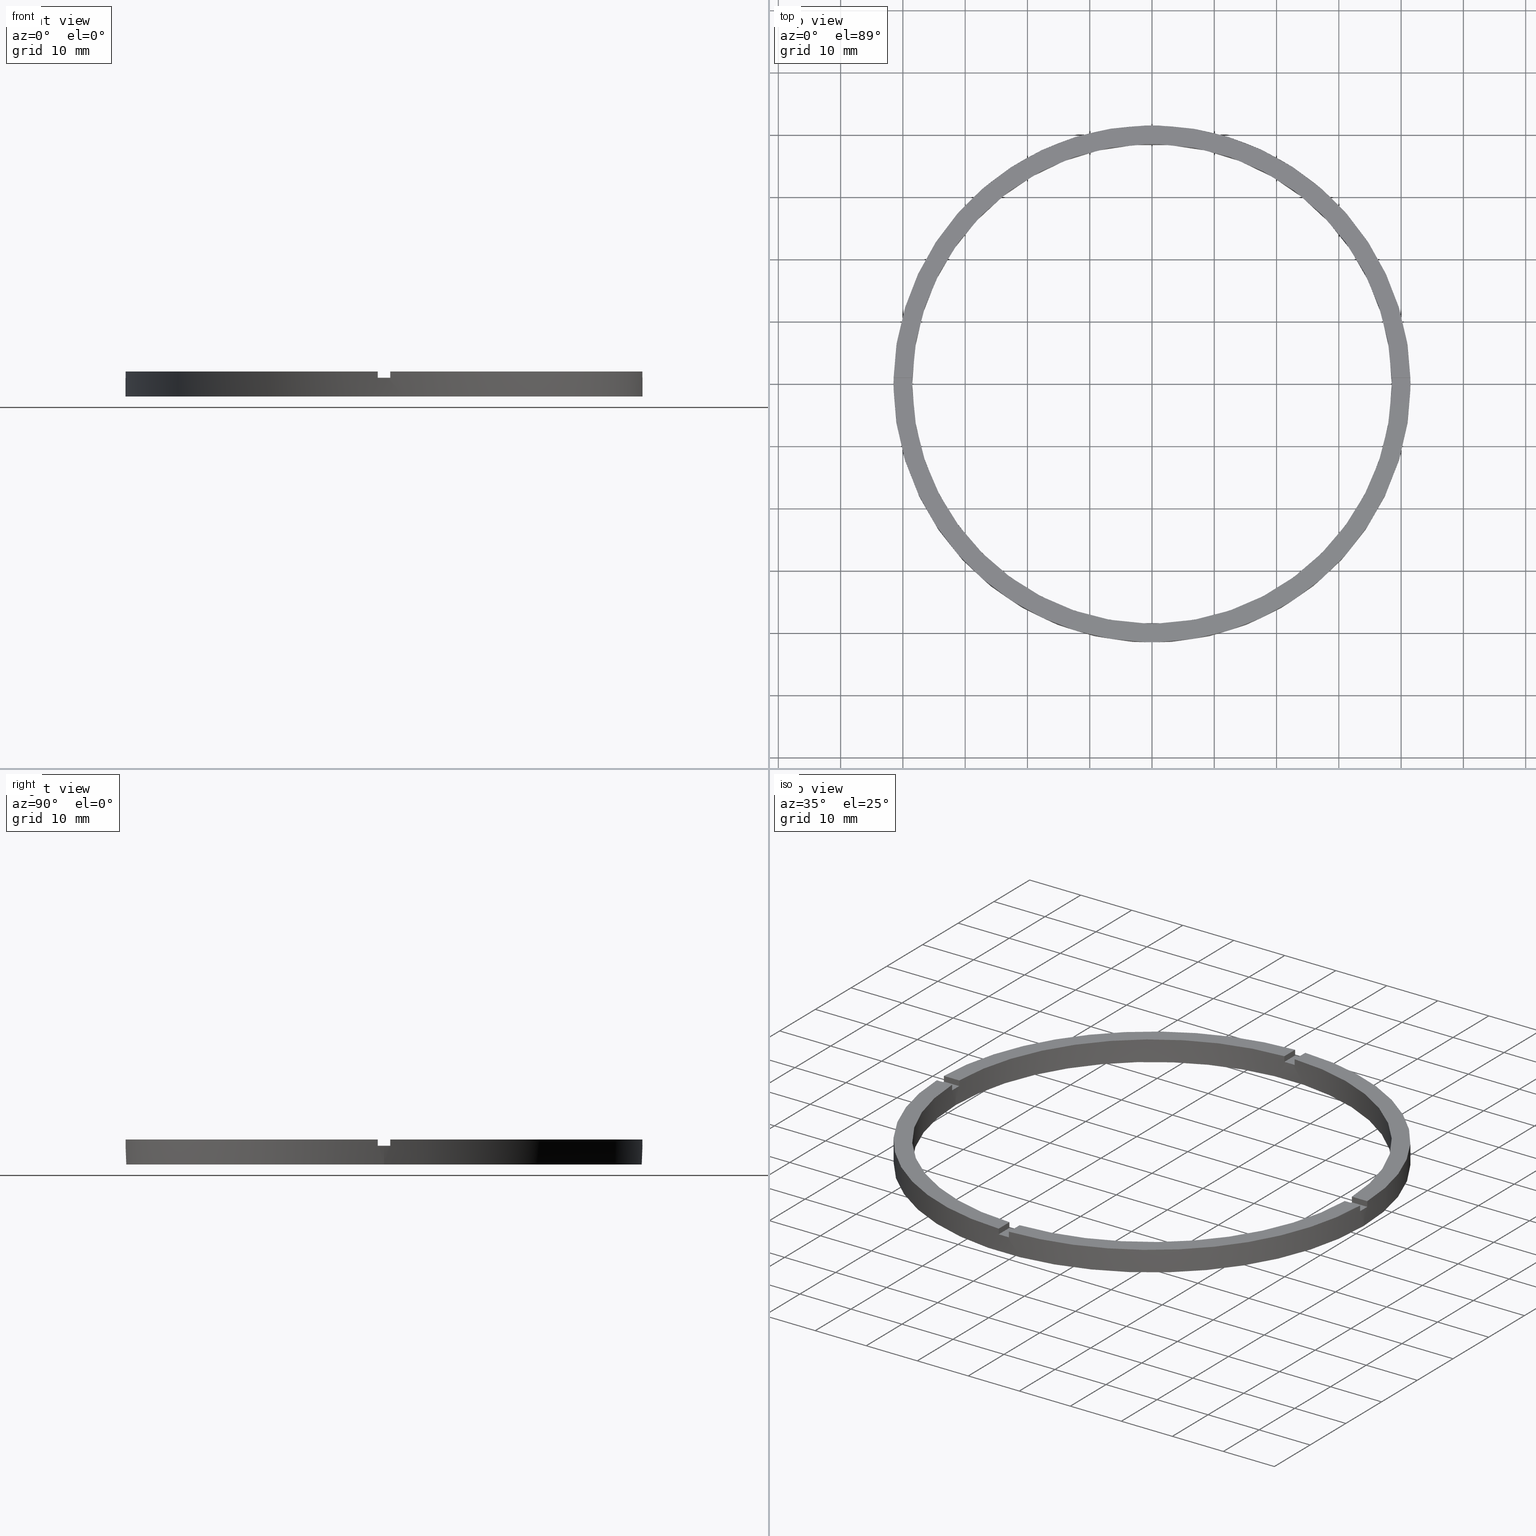
[diagram: canonical four-view strip — front | top / right | iso, engineering-drawing reading convention]
A machine part, canonical four-view strip (front | top / right | iso — engineering-drawing reading convention). The complete STEP part file that produces these views, byte-faithful:
ISO-10303-21;
HEADER;
FILE_DESCRIPTION (( 'STEP AP203' ),
    '1' );
FILE_NAME ('514170.step',
    '2024-12-26T02:44:21',
    ( 'MSI' ),
    ( '' ),
    'SwSTEP 2.0',
    'SolidWorks 2020',
    '' );
FILE_SCHEMA (( 'CONFIG_CONTROL_DESIGN' ));
ENDSEC;

DATA;
#1 = DIRECTION ( 'NONE',  ( 1.000000000000000000, 0.000000000000000000, 0.000000000000000000 ) ) ;
#2 = CARTESIAN_POINT ( 'NONE',  ( 0.9999999999998397948, -31.50000000000018119, 3.000000000000000000 ) ) ;
#3 = CARTESIAN_POINT ( 'NONE',  ( -41.48795005781799716, -1.000000000000028866, 4.000000000000000000 ) ) ;
#4 = CARTESIAN_POINT ( 'NONE',  ( 0.9999999999998406830, -38.48701079585163853, 4.000000000000000000 ) ) ;
#5 = DIRECTION ( 'NONE',  ( 1.000000000000000000, 0.000000000000000000, 0.000000000000000000 ) ) ;
#6 = CARTESIAN_POINT ( 'NONE',  ( 0.000000000000000000, 0.000000000000000000, 4.000000000000000000 ) ) ;
#7 = EDGE_CURVE ( 'NONE', #75, #222, #469, .T. ) ;
#8 = AXIS2_PLACEMENT_3D ( 'NONE', #368, #763, #560 ) ;
#9 = CARTESIAN_POINT ( 'NONE',  ( 38.48701079585163143, -1.000000000000156763, 4.000000000000000000 ) ) ;
#10 = DIRECTION ( 'NONE',  ( -1.000000000000000000, -1.301042606982605074E-16, 0.000000000000000000 ) ) ;
#11 = PLANE ( 'NONE',  #210 ) ;
#12 = EDGE_CURVE ( 'NONE', #303, #117, #732, .T. ) ;
#13 = CARTESIAN_POINT ( 'NONE',  ( 0.000000000000000000, 0.000000000000000000, 0.000000000000000000 ) ) ;
#14 = CARTESIAN_POINT ( 'NONE',  ( 41.48795005781800427, 0.9999999999998432365, 3.000000000000000000 ) ) ;
#15 = DESIGN_CONTEXT ( 'detailed design', #437, 'design' ) ;
#16 = EDGE_CURVE ( 'NONE', #352, #464, #205, .T. ) ;
#17 = CARTESIAN_POINT ( 'NONE',  ( 41.50000000000000000, 5.082284216461515748E-15, 0.000000000000000000 ) ) ;
#18 = AXIS2_PLACEMENT_3D ( 'NONE', #681, #366, #49 ) ;
#19 = CC_DESIGN_SECURITY_CLASSIFICATION ( #711, ( #764 ) ) ;
#20 = AXIS2_PLACEMENT_3D ( 'NONE', #755, #375, #747 ) ;
#21 = DIRECTION ( 'NONE',  ( 0.000000000000000000, 0.000000000000000000, 1.000000000000000000 ) ) ;
#22 = CARTESIAN_POINT ( 'NONE',  ( 0.000000000000000000, 0.000000000000000000, 3.000000000000000000 ) ) ;
#23 = ORIENTED_EDGE ( 'NONE', *, *, #257, .T. ) ;
#24 = ORIENTED_EDGE ( 'NONE', *, *, #435, .T. ) ;
#25 = CARTESIAN_POINT ( 'NONE',  ( -41.48795005781799716, -1.000000000000028866, 4.000000000000000000 ) ) ;
#26 = CARTESIAN_POINT ( 'NONE',  ( 0.000000000000000000, 0.000000000000000000, 4.000000000000000000 ) ) ;
#27 = ORIENTED_EDGE ( 'NONE', *, *, #33, .T. ) ;
#28 = AXIS2_PLACEMENT_3D ( 'NONE', #305, #748, #32 ) ;
#29 = APPROVAL_ROLE ( '' ) ;
#30 = DIRECTION ( 'NONE',  ( 1.000000000000000000, 0.000000000000000000, -0.000000000000000000 ) ) ;
#31 = DIRECTION ( 'NONE',  ( 1.000000000000000000, 0.000000000000000000, 0.000000000000000000 ) ) ;
#32 = DIRECTION ( 'NONE',  ( 1.000000000000000000, 0.000000000000000000, 0.000000000000000000 ) ) ;
#33 = EDGE_CURVE ( 'NONE', #100, #377, #198, .T. ) ;
#34 = DIRECTION ( 'NONE',  ( 1.000000000000000000, 0.000000000000000000, -0.000000000000000000 ) ) ;
#35 = PLANE ( 'NONE',  #343 ) ;
#36 = DIRECTION ( 'NONE',  ( -0.000000000000000000, -0.000000000000000000, -1.000000000000000000 ) ) ;
#37 = CARTESIAN_POINT ( 'NONE',  ( 0.9999999999999742428, 41.48795005781799716, 3.000000000000000000 ) ) ;
#38 = LINE ( 'NONE', #783, #56 ) ;
#39 = CARTESIAN_POINT ( 'NONE',  ( 31.49999999999999289, -1.000000000000157430, 4.000000000000000000 ) ) ;
#40 = CARTESIAN_POINT ( 'NONE',  ( 0.000000000000000000, 0.000000000000000000, 3.000000000000000000 ) ) ;
#41 = CARTESIAN_POINT ( 'NONE',  ( 0.9999999999999742428, 38.48701079585163143, 3.000000000000000000 ) ) ;
#42 = CARTESIAN_POINT ( 'NONE',  ( 0.9999999999998406830, -38.48701079585163853, 4.000000000000000000 ) ) ;
#43 = FACE_OUTER_BOUND ( 'NONE', #337, .T. ) ;
#44 = EDGE_CURVE ( 'NONE', #637, #736, #225, .T. ) ;
#45 = VECTOR ( 'NONE', #125, 1000.000000000000000 ) ;
#46 = VECTOR ( 'NONE', #248, 1000.000000000000000 ) ;
#47 = CARTESIAN_POINT ( 'NONE',  ( 38.50000000000000000, 4.714890176717309515E-15, 3.000000000000000000 ) ) ;
#48 = AXIS2_PLACEMENT_3D ( 'NONE', #187, #256, #359 ) ;
#49 = DIRECTION ( 'NONE',  ( 1.000000000000000000, 0.000000000000000000, 0.000000000000000000 ) ) ;
#50 = LINE ( 'NONE', #277, #572 ) ;
#51 = PLANE ( 'NONE',  #770 ) ;
#52 = VECTOR ( 'NONE', #738, 1000.000000000000000 ) ;
#53 = VECTOR ( 'NONE', #656, 1000.000000000000000 ) ;
#54 = FACE_OUTER_BOUND ( 'NONE', #644, .T. ) ;
#55 = ADVANCED_FACE ( 'NONE', ( #189 ), #250, .T. ) ;
#56 = VECTOR ( 'NONE', #191, 1000.000000000000000 ) ;
#57 = DIRECTION ( 'NONE',  ( 1.000000000000000000, 0.000000000000000000, -0.000000000000000000 ) ) ;
#58 = FACE_OUTER_BOUND ( 'NONE', #618, .T. ) ;
#59 = FACE_OUTER_BOUND ( 'NONE', #90, .T. ) ;
#60 = AXIS2_PLACEMENT_3D ( 'NONE', #771, #284, #421 ) ;
#61 = CYLINDRICAL_SURFACE ( 'NONE', #628, 38.50000000000000000 ) ;
#62 =( GEOMETRIC_REPRESENTATION_CONTEXT ( 3 ) GLOBAL_UNCERTAINTY_ASSIGNED_CONTEXT ( ( #621 ) ) GLOBAL_UNIT_ASSIGNED_CONTEXT ( ( #262, #109, #188 ) ) REPRESENTATION_CONTEXT ( 'NONE', 'WORKASPACE' ) );
#63 = PLANE ( 'NONE',  #521 ) ;
#64 = VECTOR ( 'NONE', #565, 1000.000000000000000 ) ;
#65 = CARTESIAN_POINT ( 'NONE',  ( 31.49999999999999289, -1.000000000000157430, 3.000000000000000000 ) ) ;
#66 = CIRCLE ( 'NONE', #534, 38.50000000000000000 ) ;
#67 = CIRCLE ( 'NONE', #728, 41.50000000000000000 ) ;
#68 = FACE_OUTER_BOUND ( 'NONE', #614, .T. ) ;
#69 = EDGE_LOOP ( 'NONE', ( #428, #361, #370, #701, #675, #682, #391, #673, #163, #395, #127, #403 ) ) ;
#70 = CARTESIAN_POINT ( 'NONE',  ( 0.9999999999998411271, -41.48795005781800427, 3.000000000000000000 ) ) ;
#71 = LINE ( 'NONE', #541, #759 ) ;
#72 = CLOSED_SHELL ( 'NONE', ( #586, #548, #309, #508, #192, #442, #260, #116, #536, #351, #603, #723, #271, #291, #552, #686, #448, #515, #653, #149, #55 ) ) ;
#73 = DIRECTION ( 'NONE',  ( 1.000000000000000000, 0.000000000000000000, 0.000000000000000000 ) ) ;
#74 = CIRCLE ( 'NONE', #779, 38.50000000000000000 ) ;
#75 = VERTEX_POINT ( 'NONE', #3 ) ;
#76 = VECTOR ( 'NONE', #184, 1000.000000000000000 ) ;
#77 = CARTESIAN_POINT ( 'NONE',  ( 0.000000000000000000, 0.000000000000000000, 3.000000000000000000 ) ) ;
#78 = FACE_OUTER_BOUND ( 'NONE', #86, .T. ) ;
#79 = CARTESIAN_POINT ( 'NONE',  ( -31.50000000000018829, 0.9999999999999731326, 3.000000000000000000 ) ) ;
#80 = FACE_OUTER_BOUND ( 'NONE', #460, .T. ) ;
#81 = CARTESIAN_POINT ( 'NONE',  ( 0.000000000000000000, 0.000000000000000000, 3.000000000000000000 ) ) ;
#82 = VECTOR ( 'NONE', #639, 1000.000000000000000 ) ;
#83 = LINE ( 'NONE', #87, #345 ) ;
#84 = EDGE_CURVE ( 'NONE', #135, #464, #215, .T. ) ;
#85 = EDGE_CURVE ( 'NONE', #612, #223, #194, .T. ) ;
#86 = EDGE_LOOP ( 'NONE', ( #740, #385, #660, #708 ) ) ;
#87 = CARTESIAN_POINT ( 'NONE',  ( 0.9999999999999742428, 31.50000000000000000, 3.000000000000000000 ) ) ;
#88 = DIRECTION ( 'NONE',  ( 0.000000000000000000, 0.000000000000000000, 1.000000000000000000 ) ) ;
#89 = DIRECTION ( 'NONE',  ( 0.000000000000000000, 0.000000000000000000, 1.000000000000000000 ) ) ;
#90 = EDGE_LOOP ( 'NONE', ( #24, #393, #150, #130, #432, #563, #386, #388, #23, #426, #27, #131 ) ) ;
#91 = EDGE_LOOP ( 'NONE', ( #154, #422, #113, #367 ) ) ;
#92 = DIRECTION ( 'NONE',  ( 1.000000000000000000, 0.000000000000000000, 0.000000000000000000 ) ) ;
#93 = DATE_TIME_ROLE ( 'classification_date' ) ;
#94 = CARTESIAN_POINT ( 'NONE',  ( -1.000000000000159428, -38.48701079585163143, 4.000000000000000000 ) ) ;
#95 = VERTEX_POINT ( 'NONE', #537 ) ;
#96 = CIRCLE ( 'NONE', #60, 38.50000000000000000 ) ;
#97 = PLANE ( 'NONE',  #306 ) ;
#98 = CC_DESIGN_DATE_AND_TIME_ASSIGNMENT ( #489, #93, ( #711 ) ) ;
#99 = VERTEX_POINT ( 'NONE', #733 ) ;
#100 = VERTEX_POINT ( 'NONE', #42 ) ;
#101 = DIRECTION ( 'NONE',  ( 1.000000000000000000, 0.000000000000000000, 0.000000000000000000 ) ) ;
#102 = DIRECTION ( 'NONE',  ( 1.000000000000000000, 1.951563910473907735E-16, -0.000000000000000000 ) ) ;
#103 = DIRECTION ( 'NONE',  ( -1.951563910473907735E-16, 1.000000000000000000, 0.000000000000000000 ) ) ;
#104 = VERTEX_POINT ( 'NONE', #657 ) ;
#105 = ORIENTED_EDGE ( 'NONE', *, *, #122, .T. ) ;
#106 = ORIENTED_EDGE ( 'NONE', *, *, #257, .F. ) ;
#107 = ORIENTED_EDGE ( 'NONE', *, *, #662, .F. ) ;
#108 = DIRECTION ( 'NONE',  ( -0.000000000000000000, -0.000000000000000000, -1.000000000000000000 ) ) ;
#109 =( NAMED_UNIT ( * ) PLANE_ANGLE_UNIT ( ) SI_UNIT ( $, .RADIAN. ) );
#110 = EDGE_CURVE ( 'NONE', #95, #387, #211, .T. ) ;
#111 = VERTEX_POINT ( 'NONE', #722 ) ;
#112 = CARTESIAN_POINT ( 'NONE',  ( -1.000000000000160316, -31.50000000000018119, 4.000000000000000000 ) ) ;
#113 = ORIENTED_EDGE ( 'NONE', *, *, #179, .T. ) ;
#114 = AXIS2_PLACEMENT_3D ( 'NONE', #22, #265, #365 ) ;
#115 = ORIENTED_EDGE ( 'NONE', *, *, #726, .T. ) ;
#116 = ADVANCED_FACE ( 'NONE', ( #463 ), #208, .T. ) ;
#117 = VERTEX_POINT ( 'NONE', #647 ) ;
#118 = ORIENTED_EDGE ( 'NONE', *, *, #459, .T. ) ;
#119 = ORIENTED_EDGE ( 'NONE', *, *, #301, .F. ) ;
#120 = DIRECTION ( 'NONE',  ( 0.000000000000000000, 0.000000000000000000, 1.000000000000000000 ) ) ;
#121 = CARTESIAN_POINT ( 'NONE',  ( -31.50000000000018829, -1.000000000000026867, 3.000000000000000000 ) ) ;
#122 = EDGE_CURVE ( 'NONE', #223, #612, #472, .T. ) ;
#123 = ORIENTED_EDGE ( 'NONE', *, *, #321, .T. ) ;
#124 = ORIENTED_EDGE ( 'NONE', *, *, #773, .F. ) ;
#125 = DIRECTION ( 'NONE',  ( 1.000000000000000000, 6.505213034913025371E-17, 0.000000000000000000 ) ) ;
#126 = DIRECTION ( 'NONE',  ( -1.000000000000000000, 0.000000000000000000, 0.000000000000000000 ) ) ;
#127 = ORIENTED_EDGE ( 'NONE', *, *, #741, .T. ) ;
#128 = EDGE_CURVE ( 'NONE', #425, #357, #735, .T. ) ;
#129 = DIRECTION ( 'NONE',  ( 1.000000000000000000, 6.505213034913025371E-17, 0.000000000000000000 ) ) ;
#130 = ORIENTED_EDGE ( 'NONE', *, *, #741, .F. ) ;
#131 = ORIENTED_EDGE ( 'NONE', *, *, #726, .F. ) ;
#132 = MANIFOLD_SOLID_BREP ( '�г�-����1', #72 ) ;
#133 = ORIENTED_EDGE ( 'NONE', *, *, #451, .T. ) ;
#134 = CARTESIAN_POINT ( 'NONE',  ( -1.000000000000025757, 41.48795005781799716, 4.000000000000000000 ) ) ;
#135 = VERTEX_POINT ( 'NONE', #37 ) ;
#136 = ORIENTED_EDGE ( 'NONE', *, *, #369, .F. ) ;
#138 = EDGE_CURVE ( 'NONE', #461, #117, #702, .T. ) ;
#137 = ORIENTED_EDGE ( 'NONE', *, *, #12, .T. ) ;
#139 = EDGE_CURVE ( 'NONE', #222, #710, #212, .T. ) ;
#140 = VERTEX_POINT ( 'NONE', #542 ) ;
#141 = ORIENTED_EDGE ( 'NONE', *, *, #424, .T. ) ;
#142 = ORIENTED_EDGE ( 'NONE', *, *, #229, .T. ) ;
#143 = DIRECTION ( 'NONE',  ( 1.000000000000000000, 1.951563910473907735E-16, 0.000000000000000000 ) ) ;
#144 = AXIS2_PLACEMENT_3D ( 'NONE', #642, #224, #523 ) ;
#145 = VERTEX_POINT ( 'NONE', #285 ) ;
#146 = EDGE_LOOP ( 'NONE', ( #398, #626 ) ) ;
#147 = CARTESIAN_POINT ( 'NONE',  ( 0.9999999999998411271, -41.48795005781800427, 4.000000000000000000 ) ) ;
#148 = ORIENTED_EDGE ( 'NONE', *, *, #699, .T. ) ;
#149 = ADVANCED_FACE ( 'NONE', ( #206 ), #267, .F. ) ;
#150 = ORIENTED_EDGE ( 'NONE', *, *, #459, .F. ) ;
#151 = ORIENTED_EDGE ( 'NONE', *, *, #700, .T. ) ;
#152 = EDGE_LOOP ( 'NONE', ( #646, #666, #405, #397 ) ) ;
#153 = CARTESIAN_POINT ( 'NONE',  ( 31.49999999999999289, 0.9999999999998425704, 3.000000000000000000 ) ) ;
#154 = ORIENTED_EDGE ( 'NONE', *, *, #665, .F. ) ;
#155 = DIRECTION ( 'NONE',  ( 0.000000000000000000, 0.000000000000000000, 1.000000000000000000 ) ) ;
#156 = ORIENTED_EDGE ( 'NONE', *, *, #310, .T. ) ;
#157 = ORIENTED_EDGE ( 'NONE', *, *, #128, .T. ) ;
#158 = EDGE_CURVE ( 'NONE', #111, #104, #721, .T. ) ;
#159 = ORIENTED_EDGE ( 'NONE', *, *, #435, .F. ) ;
#160 = ORIENTED_EDGE ( 'NONE', *, *, #275, .F. ) ;
#161 = CC_DESIGN_APPROVAL ( #478, ( #764 ) ) ;
#162 = ORIENTED_EDGE ( 'NONE', *, *, #466, .F. ) ;
#163 = ORIENTED_EDGE ( 'NONE', *, *, #636, .F. ) ;
#164 = AXIS2_PLACEMENT_3D ( 'NONE', #516, #21, #92 ) ;
#165 = ORIENTED_EDGE ( 'NONE', *, *, #776, .F. ) ;
#166 = ORIENTED_EDGE ( 'NONE', *, *, #440, .T. ) ;
#167 = ORIENTED_EDGE ( 'NONE', *, *, #7, .T. ) ;
#168 = ORIENTED_EDGE ( 'NONE', *, *, #678, .T. ) ;
#169 = ORIENTED_EDGE ( 'NONE', *, *, #532, .F. ) ;
#170 = ORIENTED_EDGE ( 'NONE', *, *, #229, .F. ) ;
#171 = ORIENTED_EDGE ( 'NONE', *, *, #696, .T. ) ;
#172 = ORIENTED_EDGE ( 'NONE', *, *, #110, .T. ) ;
#173 = ORIENTED_EDGE ( 'NONE', *, *, #651, .F. ) ;
#174 = AXIS2_PLACEMENT_3D ( 'NONE', #264, #307, #101 ) ;
#175 = VERTEX_POINT ( 'NONE', #384 ) ;
#176 = ORIENTED_EDGE ( 'NONE', *, *, #209, .F. ) ;
#177 = CARTESIAN_POINT ( 'NONE',  ( -1.000000000000025757, 38.48701079585163143, 4.000000000000000000 ) ) ;
#178 = CARTESIAN_POINT ( 'NONE',  ( 41.48795005781799006, -1.000000000000156763, 4.000000000000000000 ) ) ;
#179 = EDGE_CURVE ( 'NONE', #202, #104, #465, .T. ) ;
#180 = SECURITY_CLASSIFICATION_LEVEL ( 'unclassified' ) ;
#181 = PRODUCT_DEFINITION_SHAPE ( 'NONE', 'NONE',  #290 ) ;
#182 = DIRECTION ( 'NONE',  ( 0.000000000000000000, 0.000000000000000000, 1.000000000000000000 ) ) ;
#183 = CARTESIAN_POINT ( 'NONE',  ( 0.9999999999999742428, 41.48795005781799716, 4.000000000000000000 ) ) ;
#184 = DIRECTION ( 'NONE',  ( 0.000000000000000000, 0.000000000000000000, 1.000000000000000000 ) ) ;
#185 = AXIS2_PLACEMENT_3D ( 'NONE', #512, #266, #5 ) ;
#186 = APPLICATION_PROTOCOL_DEFINITION ( 'international standard', 'config_control_design', 1994, #288 ) ;
#187 = CARTESIAN_POINT ( 'NONE',  ( 0.000000000000000000, 0.000000000000000000, 4.000000000000000000 ) ) ;
#188 =( NAMED_UNIT ( * ) SI_UNIT ( $, .STERADIAN. ) SOLID_ANGLE_UNIT ( ) );
#189 = FACE_OUTER_BOUND ( 'NONE', #152, .T. ) ;
#190 = VERTEX_POINT ( 'NONE', #147 ) ;
#191 = DIRECTION ( 'NONE',  ( -1.301042606982605074E-16, 1.000000000000000000, -0.000000000000000000 ) ) ;
#192 = ADVANCED_FACE ( 'NONE', ( #455 ), #11, .T. ) ;
#193 = CARTESIAN_POINT ( 'NONE',  ( 0.000000000000000000, 0.000000000000000000, 3.000000000000000000 ) ) ;
#194 = CIRCLE ( 'NONE', #28, 41.50000000000000000 ) ;
#195 = CC_DESIGN_DATE_AND_TIME_ASSIGNMENT ( #226, #654, ( #290 ) ) ;
#196 = AXIS2_PLACEMENT_3D ( 'NONE', #6, #486, #503 ) ;
#197 = CC_DESIGN_PERSON_AND_ORGANIZATION_ASSIGNMENT ( #769, #349, ( #446 ) ) ;
#198 = CIRCLE ( 'NONE', #164, 38.50000000000000000 ) ;
#199 = ORIENTED_EDGE ( 'NONE', *, *, #369, .T. ) ;
#200 = CARTESIAN_POINT ( 'NONE',  ( -38.48701079585163143, -1.000000000000028422, 4.000000000000000000 ) ) ;
#201 = DIRECTION ( 'NONE',  ( 0.000000000000000000, 0.000000000000000000, 1.000000000000000000 ) ) ;
#202 = VERTEX_POINT ( 'NONE', #518 ) ;
#203 = DIRECTION ( 'NONE',  ( 0.000000000000000000, 0.000000000000000000, 1.000000000000000000 ) ) ;
#204 = EDGE_LOOP ( 'NONE', ( #169, #379, #709, #373 ) ) ;
#205 = CIRCLE ( 'NONE', #174, 41.50000000000000000 ) ;
#206 = FACE_OUTER_BOUND ( 'NONE', #434, .T. ) ;
#207 = DIRECTION ( 'NONE',  ( -0.000000000000000000, -0.000000000000000000, -1.000000000000000000 ) ) ;
#208 = CYLINDRICAL_SURFACE ( 'NONE', #196, 41.50000000000000000 ) ;
#209 = EDGE_CURVE ( 'NONE', #75, #357, #719, .T. ) ;
#210 = AXIS2_PLACEMENT_3D ( 'NONE', #555, #689, #57 ) ;
#211 = CIRCLE ( 'NONE', #479, 38.50000000000000000 ) ;
#212 = LINE ( 'NONE', #121, #707 ) ;
#213 = ORIENTED_EDGE ( 'NONE', *, *, #33, .F. ) ;
#214 = CARTESIAN_POINT ( 'NONE',  ( -1.000000000000025757, 31.50000000000000000, 4.000000000000000000 ) ) ;
#215 = LINE ( 'NONE', #183, #716 ) ;
#216 = PLANE ( 'NONE',  #408 ) ;
#217 = CIRCLE ( 'NONE', #520, 38.50000000000000000 ) ;
#218 = VERTEX_POINT ( 'NONE', #227 ) ;
#219 = VECTOR ( 'NONE', #278, 1000.000000000000000 ) ;
#220 = EDGE_CURVE ( 'NONE', #75, #623, #724, .T. ) ;
#221 = VERTEX_POINT ( 'NONE', #14 ) ;
#222 = VERTEX_POINT ( 'NONE', #698 ) ;
#223 = VERTEX_POINT ( 'NONE', #17 ) ;
#224 = DIRECTION ( 'NONE',  ( -1.000000000000000000, 0.000000000000000000, 0.000000000000000000 ) ) ;
#225 = LINE ( 'NONE', #482, #717 ) ;
#226 = DATE_AND_TIME ( #246, #499 ) ;
#227 = CARTESIAN_POINT ( 'NONE',  ( -41.50000000000000000, 0.000000000000000000, 3.000000000000000000 ) ) ;
#228 = LINE ( 'NONE', #268, #487 ) ;
#229 = EDGE_CURVE ( 'NONE', #619, #629, #725, .T. ) ;
#230 = APPROVAL_PERSON_ORGANIZATION ( #234, #478, #29 ) ;
#231 = LINE ( 'NONE', #453, #752 ) ;
#232 = DIRECTION ( 'NONE',  ( 0.000000000000000000, 0.000000000000000000, 1.000000000000000000 ) ) ;
#233 = CIRCLE ( 'NONE', #20, 38.50000000000000000 ) ;
#234 = PERSON_AND_ORGANIZATION ( #522, #243 ) ;
#235 = AXIS2_PLACEMENT_3D ( 'NONE', #641, #108, #782 ) ;
#236 = LINE ( 'NONE', #615, #484 ) ;
#237 = SHAPE_DEFINITION_REPRESENTATION ( #181, #238 ) ;
#238 = ADVANCED_BREP_SHAPE_REPRESENTATION ( '514170', ( #132, #544 ), #62 ) ;
#239 = LOCAL_TIME ( 10, 44, 21.00000000000000000, #252 ) ;
#240 = DIRECTION ( 'NONE',  ( 1.000000000000000000, 0.000000000000000000, -0.000000000000000000 ) ) ;
#241 = LOCAL_TIME ( 10, 44, 21.00000000000000000, #757 ) ;
#242 = PERSON_AND_ORGANIZATION ( #522, #243 ) ;
#243 = ORGANIZATION ( 'δָ��', 'δָ��', '' ) ;
#244 = CARTESIAN_POINT ( 'NONE',  ( -1.000000000000025757, 41.48795005781799716, 3.000000000000000000 ) ) ;
#245 = APPROVAL_DATE_TIME ( #249, #566 ) ;
#246 = CALENDAR_DATE ( 2024, 26, 12 ) ;
#247 = APPROVAL_DATE_TIME ( #758, #392 ) ;
#248 = DIRECTION ( 'NONE',  ( -1.000000000000000000, -1.951563910473907735E-16, 0.000000000000000000 ) ) ;
#249 = DATE_AND_TIME ( #491, #760 ) ;
#250 = PLANE ( 'NONE',  #543 ) ;
#251 = AXIS2_PLACEMENT_3D ( 'NONE', #780, #439, #715 ) ;
#252 = COORDINATED_UNIVERSAL_TIME_OFFSET ( 8, 0, .AHEAD. ) ;
#253 = DIRECTION ( 'NONE',  ( 1.000000000000000000, 0.000000000000000000, 0.000000000000000000 ) ) ;
#254 = DIRECTION ( 'NONE',  ( -0.000000000000000000, -0.000000000000000000, -1.000000000000000000 ) ) ;
#255 = COORDINATED_UNIVERSAL_TIME_OFFSET ( 8, 0, .AHEAD. ) ;
#256 = DIRECTION ( 'NONE',  ( -0.000000000000000000, -0.000000000000000000, -1.000000000000000000 ) ) ;
#257 = EDGE_CURVE ( 'NONE', #630, #629, #217, .T. ) ;
#258 = CARTESIAN_POINT ( 'NONE',  ( 0.000000000000000000, 0.000000000000000000, 3.000000000000000000 ) ) ;
#259 = CARTESIAN_POINT ( 'NONE',  ( 0.000000000000000000, 0.000000000000000000, 3.000000000000000000 ) ) ;
#260 = ADVANCED_FACE ( 'NONE', ( #473, #727 ), #51, .F. ) ;
#261 = DIRECTION ( 'NONE',  ( 1.000000000000000000, 0.000000000000000000, 0.000000000000000000 ) ) ;
#262 =( LENGTH_UNIT ( ) NAMED_UNIT ( * ) SI_UNIT ( .MILLI., .METRE. ) );
#263 = DIRECTION ( 'NONE',  ( 1.000000000000000000, 0.000000000000000000, -0.000000000000000000 ) ) ;
#264 = CARTESIAN_POINT ( 'NONE',  ( 0.000000000000000000, 0.000000000000000000, 4.000000000000000000 ) ) ;
#265 = DIRECTION ( 'NONE',  ( -0.000000000000000000, 0.000000000000000000, 1.000000000000000000 ) ) ;
#266 = DIRECTION ( 'NONE',  ( -0.000000000000000000, 0.000000000000000000, 1.000000000000000000 ) ) ;
#267 = PLANE ( 'NONE',  #697 ) ;
#268 = CARTESIAN_POINT ( 'NONE',  ( -1.000000000000160316, -31.50000000000018119, 3.000000000000000000 ) ) ;
#269 = CARTESIAN_POINT ( 'NONE',  ( 0.9999999999999742428, 38.48701079585163143, 4.000000000000000000 ) ) ;
#270 = DIRECTION ( 'NONE',  ( 1.951563910473907735E-16, -1.000000000000000000, 0.000000000000000000 ) ) ;
#271 = ADVANCED_FACE ( 'NONE', ( #474 ), #216, .F. ) ;
#272 = DIRECTION ( 'NONE',  ( -1.301042606982605074E-16, 1.000000000000000000, 0.000000000000000000 ) ) ;
#273 = CC_DESIGN_APPROVAL ( #566, ( #290 ) ) ;
#274 = CARTESIAN_POINT ( 'NONE',  ( -41.50000000000000000, 0.000000000000000000, 0.000000000000000000 ) ) ;
#275 = EDGE_CURVE ( 'NONE', #480, #637, #475, .T. ) ;
#276 = CARTESIAN_POINT ( 'NONE',  ( -31.50000000000018829, -1.000000000000026867, 4.000000000000000000 ) ) ;
#277 = CARTESIAN_POINT ( 'NONE',  ( 41.50000000000000000, 5.082284216461515748E-15, 4.000000000000000000 ) ) ;
#278 = DIRECTION ( 'NONE',  ( -1.301042606982605074E-16, 1.000000000000000000, -0.000000000000000000 ) ) ;
#279 = CARTESIAN_POINT ( 'NONE',  ( 0.000000000000000000, 0.000000000000000000, 4.000000000000000000 ) ) ;
#280 = AXIS2_PLACEMENT_3D ( 'NONE', #774, #501, #546 ) ;
#281 = CARTESIAN_POINT ( 'NONE',  ( -1.000000000000159428, -38.48701079585163143, 4.000000000000000000 ) ) ;
#282 = CARTESIAN_POINT ( 'NONE',  ( -38.50000000000000000, 0.000000000000000000, 4.000000000000000000 ) ) ;
#283 = CC_DESIGN_PERSON_AND_ORGANIZATION_ASSIGNMENT ( #485, #431, ( #764 ) ) ;
#284 = DIRECTION ( 'NONE',  ( 0.000000000000000000, 0.000000000000000000, 1.000000000000000000 ) ) ;
#285 = CARTESIAN_POINT ( 'NONE',  ( -1.000000000000025757, 38.48701079585163143, 4.000000000000000000 ) ) ;
#286 = CARTESIAN_POINT ( 'NONE',  ( -31.50000000000018829, 0.9999999999999731326, 3.000000000000000000 ) ) ;
#287 = EDGE_CURVE ( 'NONE', #303, #371, #233, .T. ) ;
#288 = APPLICATION_CONTEXT ( 'configuration controlled 3d designs of mechanical parts and assemblies' ) ;
#289 = AXIS2_PLACEMENT_3D ( 'NONE', #447, #270, #143 ) ;
#290 = PRODUCT_DEFINITION ( 'δ֪', '', #764, #15 ) ;
#291 = ADVANCED_FACE ( 'NONE', ( #750 ), #304, .F. ) ;
#292 = PLANE ( 'NONE',  #684 ) ;
#293 = EDGE_CURVE ( 'NONE', #476, #371, #231, .T. ) ;
#294 = CARTESIAN_POINT ( 'NONE',  ( 38.48701079585163853, 0.9999999999998432365, 4.000000000000000000 ) ) ;
#295 = DIRECTION ( 'NONE',  ( 1.000000000000000000, 0.000000000000000000, -0.000000000000000000 ) ) ;
#296 = CARTESIAN_POINT ( 'NONE',  ( 0.000000000000000000, 0.000000000000000000, 0.000000000000000000 ) ) ;
#297 = DIRECTION ( 'NONE',  ( 1.000000000000000000, 0.000000000000000000, 0.000000000000000000 ) ) ;
#298 = EDGE_CURVE ( 'NONE', #218, #612, #236, .T. ) ;
#299 = DIRECTION ( 'NONE',  ( 0.000000000000000000, 0.000000000000000000, 1.000000000000000000 ) ) ;
#300 = CARTESIAN_POINT ( 'NONE',  ( 0.000000000000000000, 0.000000000000000000, 4.000000000000000000 ) ) ;
#301 = EDGE_CURVE ( 'NONE', #348, #412, #746, .T. ) ;
#302 = EDGE_CURVE ( 'NONE', #623, #425, #495, .T. ) ;
#303 = VERTEX_POINT ( 'NONE', #41 ) ;
#304 = PLANE ( 'NONE',  #322 ) ;
#305 = CARTESIAN_POINT ( 'NONE',  ( 0.000000000000000000, 0.000000000000000000, 0.000000000000000000 ) ) ;
#306 = AXIS2_PLACEMENT_3D ( 'NONE', #79, #103, #477 ) ;
#307 = DIRECTION ( 'NONE',  ( 0.000000000000000000, 0.000000000000000000, 1.000000000000000000 ) ) ;
#308 = CARTESIAN_POINT ( 'NONE',  ( -41.48795005781799716, 0.9999999999999711342, 4.000000000000000000 ) ) ;
#309 = ADVANCED_FACE ( 'NONE', ( #492 ), #547, .T. ) ;
#310 = EDGE_CURVE ( 'NONE', #630, #625, #228, .T. ) ;
#311 = DIRECTION ( 'NONE',  ( -1.000000000000000000, -6.505213034913025371E-17, -0.000000000000000000 ) ) ;
#312 = FACE_OUTER_BOUND ( 'NONE', #91, .T. ) ;
#313 = AXIS2_PLACEMENT_3D ( 'NONE', #26, #353, #253 ) ;
#314 = VECTOR ( 'NONE', #423, 1000.000000000000000 ) ;
#315 = DIRECTION ( 'NONE',  ( 0.000000000000000000, 0.000000000000000000, 1.000000000000000000 ) ) ;
#316 = VECTOR ( 'NONE', #538, 1000.000000000000000 ) ;
#317 = DIRECTION ( 'NONE',  ( 0.000000000000000000, 0.000000000000000000, 1.000000000000000000 ) ) ;
#318 = VECTOR ( 'NONE', #311, 1000.000000000000000 ) ;
#319 = LINE ( 'NONE', #281, #314 ) ;
#320 = LINE ( 'NONE', #282, #604 ) ;
#321 = EDGE_CURVE ( 'NONE', #175, #476, #744, .T. ) ;
#322 = AXIS2_PLACEMENT_3D ( 'NONE', #554, #10, #383 ) ;
#323 = CARTESIAN_POINT ( 'NONE',  ( 0.9999999999998397948, -31.50000000000018119, 3.000000000000000000 ) ) ;
#324 = CIRCLE ( 'NONE', #280, 41.50000000000000000 ) ;
#325 = VECTOR ( 'NONE', #632, 1000.000000000000000 ) ;
#326 = CIRCLE ( 'NONE', #470, 41.50000000000000000 ) ;
#327 = CARTESIAN_POINT ( 'NONE',  ( 0.9999999999999742428, 31.50000000000000000, 4.000000000000000000 ) ) ;
#328 = LINE ( 'NONE', #570, #316 ) ;
#329 = CIRCLE ( 'NONE', #693, 41.50000000000000000 ) ;
#330 = CARTESIAN_POINT ( 'NONE',  ( 0.000000000000000000, 0.000000000000000000, 4.000000000000000000 ) ) ;
#331 = LINE ( 'NONE', #327, #53 ) ;
#332 = VECTOR ( 'NONE', #502, 1000.000000000000000 ) ;
#333 = LINE ( 'NONE', #39, #45 ) ;
#334 = FACE_OUTER_BOUND ( 'NONE', #69, .T. ) ;
#335 = CARTESIAN_POINT ( 'NONE',  ( 0.9999999999998406830, -38.48701079585163853, 3.000000000000000000 ) ) ;
#336 = EDGE_CURVE ( 'NONE', #100, #629, #608, .T. ) ;
#337 = EDGE_LOOP ( 'NONE', ( #162, #454, #105, #389, #378, #645, #663, #123, #107, #664, #355, #166 ) ) ;
#338 = LINE ( 'NONE', #214, #82 ) ;
#339 = DIRECTION ( 'NONE',  ( 0.000000000000000000, 0.000000000000000000, 1.000000000000000000 ) ) ;
#340 = VECTOR ( 'NONE', #754, 1000.000000000000000 ) ;
#341 = DIRECTION ( 'NONE',  ( 0.000000000000000000, 0.000000000000000000, 1.000000000000000000 ) ) ;
#342 = ORIENTED_EDGE ( 'NONE', *, *, #679, .T. ) ;
#343 = AXIS2_PLACEMENT_3D ( 'NONE', #778, #88, #30 ) ;
#344 = DIRECTION ( 'NONE',  ( 0.000000000000000000, 0.000000000000000000, -1.000000000000000000 ) ) ;
#345 = VECTOR ( 'NONE', #540, 1000.000000000000000 ) ;
#346 = CARTESIAN_POINT ( 'NONE',  ( -1.000000000000158984, -41.48795005781799006, 3.000000000000000000 ) ) ;
#347 = LINE ( 'NONE', #590, #610 ) ;
#348 = VERTEX_POINT ( 'NONE', #47 ) ;
#349 = PERSON_AND_ORGANIZATION_ROLE ( 'design_owner' ) ;
#350 = CARTESIAN_POINT ( 'NONE',  ( 38.48701079585163853, 0.9999999999998432365, 4.000000000000000000 ) ) ;
#351 = ADVANCED_FACE ( 'NONE', ( #80 ), #372, .F. ) ;
#352 = VERTEX_POINT ( 'NONE', #514 ) ;
#353 = DIRECTION ( 'NONE',  ( 0.000000000000000000, 0.000000000000000000, 1.000000000000000000 ) ) ;
#354 = DIRECTION ( 'NONE',  ( 0.000000000000000000, 0.000000000000000000, 1.000000000000000000 ) ) ;
#355 = ORIENTED_EDGE ( 'NONE', *, *, #16, .F. ) ;
#356 = ORIENTED_EDGE ( 'NONE', *, *, #451, .F. ) ;
#357 = VERTEX_POINT ( 'NONE', #609 ) ;
#358 = AXIS2_PLACEMENT_3D ( 'NONE', #77, #232, #240 ) ;
#359 = DIRECTION ( 'NONE',  ( -1.000000000000000000, 0.000000000000000000, 0.000000000000000000 ) ) ;
#360 = DIRECTION ( 'NONE',  ( 1.000000000000000000, 0.000000000000000000, 0.000000000000000000 ) ) ;
#361 = ORIENTED_EDGE ( 'NONE', *, *, #301, .T. ) ;
#362 = ORIENTED_EDGE ( 'NONE', *, *, #381, .T. ) ;
#363 = CIRCLE ( 'NONE', #114, 41.50000000000000000 ) ;
#364 = EDGE_LOOP ( 'NONE', ( #362, #382, #668, #429 ) ) ;
#365 = DIRECTION ( 'NONE',  ( 1.000000000000000000, 0.000000000000000000, 0.000000000000000000 ) ) ;
#366 = DIRECTION ( 'NONE',  ( 0.000000000000000000, 0.000000000000000000, 1.000000000000000000 ) ) ;
#367 = ORIENTED_EDGE ( 'NONE', *, *, #158, .F. ) ;
#368 = CARTESIAN_POINT ( 'NONE',  ( 0.000000000000000000, 0.000000000000000000, 3.000000000000000000 ) ) ;
#369 = EDGE_CURVE ( 'NONE', #190, #619, #606, .T. ) ;
#370 = ORIENTED_EDGE ( 'NONE', *, *, #761, .F. ) ;
#371 = VERTEX_POINT ( 'NONE', #680 ) ;
#372 = PLANE ( 'NONE',  #289 ) ;
#373 = ORIENTED_EDGE ( 'NONE', *, *, #16, .T. ) ;
#374 = EDGE_LOOP ( 'NONE', ( #141, #142, #106, #156 ) ) ;
#375 = DIRECTION ( 'NONE',  ( 0.000000000000000000, -0.000000000000000000, 1.000000000000000000 ) ) ;
#376 = EDGE_LOOP ( 'NONE', ( #438, #410, #674, #173, #199, #620, #342, #176, #167, #380, #688, #616 ) ) ;
#377 = VERTEX_POINT ( 'NONE', #9 ) ;
#378 = ORIENTED_EDGE ( 'NONE', *, *, #753, .F. ) ;
#379 = ORIENTED_EDGE ( 'NONE', *, *, #138, .F. ) ;
#380 = ORIENTED_EDGE ( 'NONE', *, *, #696, .F. ) ;
#381 = EDGE_CURVE ( 'NONE', #175, #145, #338, .T. ) ;
#382 = ORIENTED_EDGE ( 'NONE', *, *, #531, .T. ) ;
#383 = DIRECTION ( 'NONE',  ( 1.301042606982605074E-16, -1.000000000000000000, 0.000000000000000000 ) ) ;
#384 = CARTESIAN_POINT ( 'NONE',  ( -1.000000000000025757, 41.48795005781799716, 4.000000000000000000 ) ) ;
#385 = ORIENTED_EDGE ( 'NONE', *, *, #302, .F. ) ;
#386 = ORIENTED_EDGE ( 'NONE', *, *, #302, .T. ) ;
#387 = VERTEX_POINT ( 'NONE', #705 ) ;
#388 = ORIENTED_EDGE ( 'NONE', *, *, #467, .F. ) ;
#389 = ORIENTED_EDGE ( 'NONE', *, *, #298, .F. ) ;
#390 = ORIENTED_EDGE ( 'NONE', *, *, #456, .T. ) ;
#391 = ORIENTED_EDGE ( 'NONE', *, *, #531, .F. ) ;
#392 = APPROVAL ( #525, 'δָ��' ) ;
#393 = ORIENTED_EDGE ( 'NONE', *, *, #556, .T. ) ;
#394 = AXIS2_PLACEMENT_3D ( 'NONE', #40, #201, #1 ) ;
#395 = ORIENTED_EDGE ( 'NONE', *, *, #497, .T. ) ;
#396 = ORIENTED_EDGE ( 'NONE', *, *, #665, .T. ) ;
#397 = ORIENTED_EDGE ( 'NONE', *, *, #436, .T. ) ;
#398 = ORIENTED_EDGE ( 'NONE', *, *, #85, .F. ) ;
#399 = ORIENTED_EDGE ( 'NONE', *, *, #497, .F. ) ;
#400 = ORIENTED_EDGE ( 'NONE', *, *, #381, .F. ) ;
#401 = ORIENTED_EDGE ( 'NONE', *, *, #84, .F. ) ;
#402 = EDGE_LOOP ( 'NONE', ( #400, #151, #458, #643 ) ) ;
#403 = ORIENTED_EDGE ( 'NONE', *, *, #110, .F. ) ;
#404 = CARTESIAN_POINT ( 'NONE',  ( 38.48701079585163853, 0.9999999999998432365, 3.000000000000000000 ) ) ;
#405 = ORIENTED_EDGE ( 'NONE', *, *, #287, .F. ) ;
#406 = EDGE_LOOP ( 'NONE', ( #148, #420, #414, #119, #159, #683 ) ) ;
#407 = ORIENTED_EDGE ( 'NONE', *, *, #773, .T. ) ;
#408 = AXIS2_PLACEMENT_3D ( 'NONE', #2, #550, #272 ) ;
#409 = AXIS2_PLACEMENT_3D ( 'NONE', #258, #120, #31 ) ;
#410 = ORIENTED_EDGE ( 'NONE', *, *, #699, .F. ) ;
#411 = EDGE_LOOP ( 'NONE', ( #407, #685, #170, #136 ) ) ;
#412 = VERTEX_POINT ( 'NONE', #404 ) ;
#413 = DIRECTION ( 'NONE',  ( 1.000000000000000000, 0.000000000000000000, 0.000000000000000000 ) ) ;
#414 = ORIENTED_EDGE ( 'NONE', *, *, #776, .T. ) ;
#415 = ORIENTED_EDGE ( 'NONE', *, *, #564, .F. ) ;
#416 = CARTESIAN_POINT ( 'NONE',  ( 0.000000000000000000, 0.000000000000000000, 3.000000000000000000 ) ) ;
#417 = ORIENTED_EDGE ( 'NONE', *, *, #440, .F. ) ;
#418 = ORIENTED_EDGE ( 'NONE', *, *, #753, .T. ) ;
#419 = APPROVAL_ROLE ( '' ) ;
#420 = ORIENTED_EDGE ( 'NONE', *, *, #466, .T. ) ;
#421 = DIRECTION ( 'NONE',  ( 1.000000000000000000, 0.000000000000000000, 0.000000000000000000 ) ) ;
#422 = ORIENTED_EDGE ( 'NONE', *, *, #636, .T. ) ;
#423 = DIRECTION ( 'NONE',  ( 0.000000000000000000, 0.000000000000000000, 1.000000000000000000 ) ) ;
#424 = EDGE_CURVE ( 'NONE', #625, #619, #363, .T. ) ;
#425 = VERTEX_POINT ( 'NONE', #94 ) ;
#426 = ORIENTED_EDGE ( 'NONE', *, *, #336, .F. ) ;
#427 = CARTESIAN_POINT ( 'NONE',  ( -38.50000000000000000, 0.000000000000000000, 3.000000000000000000 ) ) ;
#428 = ORIENTED_EDGE ( 'NONE', *, *, #556, .F. ) ;
#429 = ORIENTED_EDGE ( 'NONE', *, *, #321, .F. ) ;
#430 = DIRECTION ( 'NONE',  ( -0.000000000000000000, -0.000000000000000000, -1.000000000000000000 ) ) ;
#431 = PERSON_AND_ORGANIZATION_ROLE ( 'creator' ) ;
#432 = ORIENTED_EDGE ( 'NONE', *, *, #564, .T. ) ;
#433 = DIRECTION ( 'NONE',  ( 0.000000000000000000, 0.000000000000000000, 1.000000000000000000 ) ) ;
#434 = EDGE_LOOP ( 'NONE', ( #667, #137, #677, #401 ) ) ;
#435 = EDGE_CURVE ( 'NONE', #480, #348, #96, .T. ) ;
#436 = EDGE_CURVE ( 'NONE', #303, #135, #83, .T. ) ;
#437 = APPLICATION_CONTEXT ( 'configuration controlled 3d designs of mechanical parts and assemblies' ) ;
#438 = ORIENTED_EDGE ( 'NONE', *, *, #617, .F. ) ;
#439 = DIRECTION ( 'NONE',  ( 0.000000000000000000, 0.000000000000000000, 1.000000000000000000 ) ) ;
#440 = EDGE_CURVE ( 'NONE', #352, #221, #347, .T. ) ;
#441 = CC_DESIGN_PERSON_AND_ORGANIZATION_ASSIGNMENT ( #762, #527, ( #711 ) ) ;
#442 = ADVANCED_FACE ( 'NONE', ( #78 ), #729, .T. ) ;
#443 = DIRECTION ( 'NONE',  ( -0.000000000000000000, -0.000000000000000000, -1.000000000000000000 ) ) ;
#444 = DIRECTION ( 'NONE',  ( 1.000000000000000000, 0.000000000000000000, -0.000000000000000000 ) ) ;
#445 = DIRECTION ( 'NONE',  ( 0.000000000000000000, -0.000000000000000000, 1.000000000000000000 ) ) ;
#446 = PRODUCT ( '514170', '514170', '', ( #718 ) ) ;
#447 = CARTESIAN_POINT ( 'NONE',  ( -31.50000000000018829, -1.000000000000026867, 3.000000000000000000 ) ) ;
#448 = ADVANCED_FACE ( 'NONE', ( #58 ), #506, .F. ) ;
#449 = DIRECTION ( 'NONE',  ( 0.000000000000000000, 0.000000000000000000, 1.000000000000000000 ) ) ;
#450 = DIRECTION ( 'NONE',  ( -1.000000000000000000, -1.951563910473907735E-16, 0.000000000000000000 ) ) ;
#451 = EDGE_CURVE ( 'NONE', #377, #736, #333, .T. ) ;
#452 = AXIS2_PLACEMENT_3D ( 'NONE', #259, #354, #297 ) ;
#453 = CARTESIAN_POINT ( 'NONE',  ( -1.000000000000025757, 31.50000000000000000, 3.000000000000000000 ) ) ;
#454 = ORIENTED_EDGE ( 'NONE', *, *, #617, .T. ) ;
#455 = FACE_OUTER_BOUND ( 'NONE', #622, .T. ) ;
#456 = EDGE_CURVE ( 'NONE', #623, #710, #600, .T. ) ;
#457 = VECTOR ( 'NONE', #557, 1000.000000000000000 ) ;
#458 = ORIENTED_EDGE ( 'NONE', *, *, #179, .F. ) ;
#459 = EDGE_CURVE ( 'NONE', #387, #95, #66, .T. ) ;
#460 = EDGE_LOOP ( 'NONE', ( #635, #390, #652, #649 ) ) ;
#461 = VERTEX_POINT ( 'NONE', #350 ) ;
#462 = DIRECTION ( 'NONE',  ( 1.000000000000000000, 0.000000000000000000, 0.000000000000000000 ) ) ;
#463 = FACE_OUTER_BOUND ( 'NONE', #376, .T. ) ;
#464 = VERTEX_POINT ( 'NONE', #528 ) ;
#465 = LINE ( 'NONE', #691, #468 ) ;
#466 = EDGE_CURVE ( 'NONE', #140, #221, #324, .T. ) ;
#467 = EDGE_CURVE ( 'NONE', #630, #425, #319, .T. ) ;
#468 = VECTOR ( 'NONE', #450, 1000.000000000000000 ) ;
#469 = LINE ( 'NONE', #25, #739 ) ;
#470 = AXIS2_PLACEMENT_3D ( 'NONE', #330, #315, #488 ) ;
#471 = DIRECTION ( 'NONE',  ( 1.000000000000000000, 6.505213034913025371E-17, 0.000000000000000000 ) ) ;
#472 = CIRCLE ( 'NONE', #251, 41.50000000000000000 ) ;
#473 = FACE_OUTER_BOUND ( 'NONE', #146, .T. ) ;
#474 = FACE_OUTER_BOUND ( 'NONE', #411, .T. ) ;
#475 = LINE ( 'NONE', #65, #742 ) ;
#476 = VERTEX_POINT ( 'NONE', #244 ) ;
#477 = DIRECTION ( 'NONE',  ( -1.000000000000000000, -1.951563910473907735E-16, 0.000000000000000000 ) ) ;
#478 = APPROVAL ( #588, 'δָ��' ) ;
#479 = AXIS2_PLACEMENT_3D ( 'NONE', #296, #433, #360 ) ;
#480 = VERTEX_POINT ( 'NONE', #712 ) ;
#481 = VECTOR ( 'NONE', #756, 1000.000000000000000 ) ;
#482 = CARTESIAN_POINT ( 'NONE',  ( 41.48795005781799006, -1.000000000000156763, 4.000000000000000000 ) ) ;
#483 = DIRECTION ( 'NONE',  ( -0.000000000000000000, -0.000000000000000000, -1.000000000000000000 ) ) ;
#484 = VECTOR ( 'NONE', #509, 1000.000000000000000 ) ;
#485 = PERSON_AND_ORGANIZATION ( #522, #243 ) ;
#486 = DIRECTION ( 'NONE',  ( -0.000000000000000000, -0.000000000000000000, -1.000000000000000000 ) ) ;
#487 = VECTOR ( 'NONE', #745, 1000.000000000000000 ) ;
#488 = DIRECTION ( 'NONE',  ( 1.000000000000000000, 0.000000000000000000, 0.000000000000000000 ) ) ;
#489 = DATE_AND_TIME ( #743, #241 ) ;
#490 = VECTOR ( 'NONE', #553, 1000.000000000000000 ) ;
#491 = CALENDAR_DATE ( 2024, 26, 12 ) ;
#492 = FACE_OUTER_BOUND ( 'NONE', #402, .T. ) ;
#493 = COORDINATED_UNIVERSAL_TIME_OFFSET ( 8, 0, .AHEAD. ) ;
#494 = CARTESIAN_POINT ( 'NONE',  ( 0.000000000000000000, 0.000000000000000000, 0.000000000000000000 ) ) ;
#495 = CIRCLE ( 'NONE', #611, 38.50000000000000000 ) ;
#496 = CALENDAR_DATE ( 2024, 26, 12 ) ;
#497 = EDGE_CURVE ( 'NONE', #99, #634, #74, .T. ) ;
#498 = CARTESIAN_POINT ( 'NONE',  ( -1.000000000000159428, -38.48701079585163143, 3.000000000000000000 ) ) ;
#499 = LOCAL_TIME ( 10, 44, 21.00000000000000000, #255 ) ;
#500 = APPROVAL_PERSON_ORGANIZATION ( #749, #392, #419 ) ;
#501 = DIRECTION ( 'NONE',  ( 0.000000000000000000, 0.000000000000000000, 1.000000000000000000 ) ) ;
#502 = DIRECTION ( 'NONE',  ( -0.000000000000000000, -0.000000000000000000, -1.000000000000000000 ) ) ;
#503 = DIRECTION ( 'NONE',  ( -1.000000000000000000, 0.000000000000000000, 0.000000000000000000 ) ) ;
#504 = DATE_AND_TIME ( #496, #239 ) ;
#505 = APPROVAL_PERSON_ORGANIZATION ( #507, #566, #578 ) ;
#506 = PLANE ( 'NONE',  #585 ) ;
#507 = PERSON_AND_ORGANIZATION ( #522, #243 ) ;
#508 = ADVANCED_FACE ( 'NONE', ( #574 ), #35, .T. ) ;
#509 = DIRECTION ( 'NONE',  ( -0.000000000000000000, -0.000000000000000000, -1.000000000000000000 ) ) ;
#510 = COORDINATED_UNIVERSAL_TIME_OFFSET ( 8, 0, .AHEAD. ) ;
#511 = DIRECTION ( 'NONE',  ( 1.000000000000000000, 0.000000000000000000, 0.000000000000000000 ) ) ;
#512 = CARTESIAN_POINT ( 'NONE',  ( 0.000000000000000000, 0.000000000000000000, 3.000000000000000000 ) ) ;
#513 = PERSON_AND_ORGANIZATION ( #522, #243 ) ;
#514 = CARTESIAN_POINT ( 'NONE',  ( 41.48795005781800427, 0.9999999999998432365, 4.000000000000000000 ) ) ;
#515 = ADVANCED_FACE ( 'NONE', ( #587 ), #292, .T. ) ;
#516 = CARTESIAN_POINT ( 'NONE',  ( 0.000000000000000000, 0.000000000000000000, 4.000000000000000000 ) ) ;
#517 = DIRECTION ( 'NONE',  ( -0.000000000000000000, -1.000000000000000000, -0.000000000000000000 ) ) ;
#518 = CARTESIAN_POINT ( 'NONE',  ( -38.48701079585163143, 0.9999999999999715783, 4.000000000000000000 ) ) ;
#519 = CC_DESIGN_PERSON_AND_ORGANIZATION_ASSIGNMENT ( #242, #777, ( #290 ) ) ;
#520 = AXIS2_PLACEMENT_3D ( 'NONE', #81, #766, #73 ) ;
#521 = AXIS2_PLACEMENT_3D ( 'NONE', #153, #624, #695 ) ;
#522 = PERSON ( 'δָ��', 'δָ��', 'δָ��', ('δָ��'), ('δָ��'), ('δָ��') ) ;
#523 = DIRECTION ( 'NONE',  ( 0.000000000000000000, 0.000000000000000000, 1.000000000000000000 ) ) ;
#524 = DIRECTION ( 'NONE',  ( 1.000000000000000000, 1.951563910473907735E-16, -0.000000000000000000 ) ) ;
#525 = APPROVAL_STATUS ( 'not_yet_approved' ) ;
#526 = CARTESIAN_POINT ( 'NONE',  ( 38.48701079585163143, -1.000000000000156763, 4.000000000000000000 ) ) ;
#527 = PERSON_AND_ORGANIZATION_ROLE ( 'classification_officer' ) ;
#528 = CARTESIAN_POINT ( 'NONE',  ( 0.9999999999999742428, 41.48795005781799716, 4.000000000000000000 ) ) ;
#529 = DIRECTION ( 'NONE',  ( 0.000000000000000000, -0.000000000000000000, 1.000000000000000000 ) ) ;
#530 = DIRECTION ( 'NONE',  ( 0.000000000000000000, 0.000000000000000000, 1.000000000000000000 ) ) ;
#531 = EDGE_CURVE ( 'NONE', #145, #371, #577, .T. ) ;
#532 = EDGE_CURVE ( 'NONE', #117, #464, #331, .T. ) ;
#533 = CARTESIAN_POINT ( 'NONE',  ( 31.49999999999999289, 0.9999999999998425704, 4.000000000000000000 ) ) ;
#534 = AXIS2_PLACEMENT_3D ( 'NONE', #768, #299, #511 ) ;
#535 = APPLICATION_PROTOCOL_DEFINITION ( 'international standard', 'config_control_design', 1994, #437 ) ;
#536 = ADVANCED_FACE ( 'NONE', ( #334 ), #567, .F. ) ;
#537 = CARTESIAN_POINT ( 'NONE',  ( 38.50000000000000000, 4.714890176717309515E-15, 0.000000000000000000 ) ) ;
#538 = DIRECTION ( 'NONE',  ( 0.000000000000000000, 0.000000000000000000, 1.000000000000000000 ) ) ;
#539 = APPROVAL_STATUS ( 'not_yet_approved' ) ;
#540 = DIRECTION ( 'NONE',  ( 0.000000000000000000, 1.000000000000000000, 0.000000000000000000 ) ) ;
#541 = CARTESIAN_POINT ( 'NONE',  ( 31.49999999999999289, 0.9999999999998425704, 3.000000000000000000 ) ) ;
#542 = CARTESIAN_POINT ( 'NONE',  ( 41.50000000000000000, 5.082284216461515748E-15, 3.000000000000000000 ) ) ;
#543 = AXIS2_PLACEMENT_3D ( 'NONE', #575, #445, #263 ) ;
#544 = AXIS2_PLACEMENT_3D ( 'NONE', #494, #339, #659 ) ;
#545 = DIRECTION ( 'NONE',  ( 0.000000000000000000, 0.000000000000000000, 1.000000000000000000 ) ) ;
#546 = DIRECTION ( 'NONE',  ( 1.000000000000000000, 0.000000000000000000, 0.000000000000000000 ) ) ;
#547 = PLANE ( 'NONE',  #640 ) ;
#548 = ADVANCED_FACE ( 'NONE', ( #43 ), #599, .T. ) ;
#549 = PLANE ( 'NONE',  #185 ) ;
#550 = DIRECTION ( 'NONE',  ( 1.000000000000000000, 1.301042606982605074E-16, 0.000000000000000000 ) ) ;
#551 = CARTESIAN_POINT ( 'NONE',  ( 0.9999999999999742428, 31.50000000000000000, 3.000000000000000000 ) ) ;
#552 = ADVANCED_FACE ( 'NONE', ( #581 ), #549, .T. ) ;
#553 = DIRECTION ( 'NONE',  ( -0.000000000000000000, -0.000000000000000000, -1.000000000000000000 ) ) ;
#554 = CARTESIAN_POINT ( 'NONE',  ( -1.000000000000160316, -31.50000000000018119, 3.000000000000000000 ) ) ;
#555 = CARTESIAN_POINT ( 'NONE',  ( 0.000000000000000000, 0.000000000000000000, 4.000000000000000000 ) ) ;
#556 = EDGE_CURVE ( 'NONE', #348, #95, #591, .T. ) ;
#557 = DIRECTION ( 'NONE',  ( 0.000000000000000000, 0.000000000000000000, 1.000000000000000000 ) ) ;
#558 = CARTESIAN_POINT ( 'NONE',  ( 0.000000000000000000, 0.000000000000000000, 4.000000000000000000 ) ) ;
#559 = CARTESIAN_POINT ( 'NONE',  ( -38.48701079585163143, -1.000000000000028422, 4.000000000000000000 ) ) ;
#560 = DIRECTION ( 'NONE',  ( 1.000000000000000000, 0.000000000000000000, 0.000000000000000000 ) ) ;
#561 = CC_DESIGN_APPROVAL ( #392, ( #711 ) ) ;
#562 = PLANE ( 'NONE',  #144 ) ;
#563 = ORIENTED_EDGE ( 'NONE', *, *, #456, .F. ) ;
#564 = EDGE_CURVE ( 'NONE', #634, #710, #589, .T. ) ;
#565 = DIRECTION ( 'NONE',  ( -0.000000000000000000, -0.000000000000000000, -1.000000000000000000 ) ) ;
#566 = APPROVAL ( #539, 'δָ��' ) ;
#567 = CYLINDRICAL_SURFACE ( 'NONE', #235, 38.50000000000000000 ) ;
#568 = CARTESIAN_POINT ( 'NONE',  ( -38.48701079585163143, -1.000000000000028422, 3.000000000000000000 ) ) ;
#569 = CIRCLE ( 'NONE', #613, 41.50000000000000000 ) ;
#570 = CARTESIAN_POINT ( 'NONE',  ( -38.48701079585163143, 0.9999999999999715783, 4.000000000000000000 ) ) ;
#571 = LINE ( 'NONE', #781, #76 ) ;
#572 = VECTOR ( 'NONE', #254, 1000.000000000000000 ) ;
#573 = LINE ( 'NONE', #533, #318 ) ;
#574 = FACE_OUTER_BOUND ( 'NONE', #204, .T. ) ;
#575 = CARTESIAN_POINT ( 'NONE',  ( 0.000000000000000000, 0.000000000000000000, 3.000000000000000000 ) ) ;
#576 = LINE ( 'NONE', #526, #325 ) ;
#577 = LINE ( 'NONE', #177, #593 ) ;
#578 = APPROVAL_ROLE ( '' ) ;
#579 = CIRCLE ( 'NONE', #409, 41.50000000000000000 ) ;
#580 = DIRECTION ( 'NONE',  ( -0.000000000000000000, -0.000000000000000000, -1.000000000000000000 ) ) ;
#581 = FACE_OUTER_BOUND ( 'NONE', #374, .T. ) ;
#582 = DIRECTION ( 'NONE',  ( 0.000000000000000000, 0.000000000000000000, 1.000000000000000000 ) ) ;
#583 = CARTESIAN_POINT ( 'NONE',  ( 41.48795005781799006, -1.000000000000156763, 3.000000000000000000 ) ) ;
#584 = LINE ( 'NONE', #294, #332 ) ;
#585 = AXIS2_PLACEMENT_3D ( 'NONE', #596, #737, #471 ) ;
#586 = ADVANCED_FACE ( 'NONE', ( #59 ), #61, .F. ) ;
#587 = FACE_OUTER_BOUND ( 'NONE', #406, .T. ) ;
#588 = APPROVAL_STATUS ( 'not_yet_approved' ) ;
#589 = CIRCLE ( 'NONE', #394, 38.50000000000000000 ) ;
#590 = CARTESIAN_POINT ( 'NONE',  ( 41.48795005781800427, 0.9999999999998432365, 4.000000000000000000 ) ) ;
#591 = LINE ( 'NONE', #602, #52 ) ;
#592 = CIRCLE ( 'NONE', #18, 38.50000000000000000 ) ;
#593 = VECTOR ( 'NONE', #580, 1000.000000000000000 ) ;
#594 = CIRCLE ( 'NONE', #452, 41.50000000000000000 ) ;
#595 = EDGE_CURVE ( 'NONE', #145, #202, #592, .T. ) ;
#596 = CARTESIAN_POINT ( 'NONE',  ( 31.49999999999999289, -1.000000000000157430, 3.000000000000000000 ) ) ;
#597 = FACE_OUTER_BOUND ( 'NONE', #364, .T. ) ;
#598 = CC_DESIGN_PERSON_AND_ORGANIZATION_ASSIGNMENT ( #513, #703, ( #764 ) ) ;
#599 = CYLINDRICAL_SURFACE ( 'NONE', #48, 41.50000000000000000 ) ;
#600 = LINE ( 'NONE', #200, #64 ) ;
#601 = LINE ( 'NONE', #286, #46 ) ;
#602 = CARTESIAN_POINT ( 'NONE',  ( 38.50000000000000000, 4.714890176717309515E-15, 4.000000000000000000 ) ) ;
#603 = ADVANCED_FACE ( 'NONE', ( #312 ), #97, .F. ) ;
#604 = VECTOR ( 'NONE', #36, 1000.000000000000000 ) ;
#605 = DIRECTION ( 'NONE',  ( 1.000000000000000000, -0.000000000000000000, 0.000000000000000000 ) ) ;
#606 = LINE ( 'NONE', #687, #340 ) ;
#607 = VECTOR ( 'NONE', #207, 1000.000000000000000 ) ;
#608 = LINE ( 'NONE', #4, #607 ) ;
#609 = CARTESIAN_POINT ( 'NONE',  ( -1.000000000000158984, -41.48795005781799006, 4.000000000000000000 ) ) ;
#610 = VECTOR ( 'NONE', #483, 1000.000000000000000 ) ;
#611 = AXIS2_PLACEMENT_3D ( 'NONE', #690, #155, #694 ) ;
#612 = VERTEX_POINT ( 'NONE', #274 ) ;
#613 = AXIS2_PLACEMENT_3D ( 'NONE', #193, #89, #413 ) ;
#614 = EDGE_LOOP ( 'NONE', ( #418, #171, #650, #415, #399, #396 ) ) ;
#615 = CARTESIAN_POINT ( 'NONE',  ( -41.50000000000000000, 0.000000000000000000, 4.000000000000000000 ) ) ;
#616 = ORIENTED_EDGE ( 'NONE', *, *, #85, .T. ) ;
#617 = EDGE_CURVE ( 'NONE', #140, #223, #50, .T. ) ;
#618 = EDGE_LOOP ( 'NONE', ( #160, #115, #133, #631 ) ) ;
#619 = VERTEX_POINT ( 'NONE', #70 ) ;
#620 = ORIENTED_EDGE ( 'NONE', *, *, #424, .F. ) ;
#621 = UNCERTAINTY_MEASURE_WITH_UNIT (LENGTH_MEASURE( 1.000000000000000082E-05 ), #262, 'distance_accuracy_value', 'NONE');
#622 = EDGE_LOOP ( 'NONE', ( #356, #213, #124, #671 ) ) ;
#623 = VERTEX_POINT ( 'NONE', #559 ) ;
#624 = DIRECTION ( 'NONE',  ( -6.505213034913025371E-17, 1.000000000000000000, 0.000000000000000000 ) ) ;
#625 = VERTEX_POINT ( 'NONE', #346 ) ;
#626 = ORIENTED_EDGE ( 'NONE', *, *, #122, .F. ) ;
#627 = CARTESIAN_POINT ( 'NONE',  ( 0.000000000000000000, 0.000000000000000000, 4.000000000000000000 ) ) ;
#628 = AXIS2_PLACEMENT_3D ( 'NONE', #300, #443, #126 ) ;
#629 = VERTEX_POINT ( 'NONE', #335 ) ;
#630 = VERTEX_POINT ( 'NONE', #498 ) ;
#631 = ORIENTED_EDGE ( 'NONE', *, *, #44, .F. ) ;
#632 = DIRECTION ( 'NONE',  ( 0.000000000000000000, 0.000000000000000000, 1.000000000000000000 ) ) ;
#633 = ORIENTED_EDGE ( 'NONE', *, *, #679, .F. ) ;
#634 = VERTEX_POINT ( 'NONE', #427 ) ;
#636 = EDGE_CURVE ( 'NONE', #99, #202, #328, .T. ) ;
#635 = ORIENTED_EDGE ( 'NONE', *, *, #220, .T. ) ;
#637 = VERTEX_POINT ( 'NONE', #583 ) ;
#638 = PRODUCT_RELATED_PRODUCT_CATEGORY ( 'detail', '', ( #446 ) ) ;
#639 = DIRECTION ( 'NONE',  ( -0.000000000000000000, -1.000000000000000000, -0.000000000000000000 ) ) ;
#640 = AXIS2_PLACEMENT_3D ( 'NONE', #672, #203, #444 ) ;
#641 = CARTESIAN_POINT ( 'NONE',  ( 0.000000000000000000, 0.000000000000000000, 4.000000000000000000 ) ) ;
#642 = CARTESIAN_POINT ( 'NONE',  ( -1.000000000000025757, 31.50000000000000000, 3.000000000000000000 ) ) ;
#643 = ORIENTED_EDGE ( 'NONE', *, *, #595, .F. ) ;
#644 = EDGE_LOOP ( 'NONE', ( #168, #658, #165, #417 ) ) ;
#645 = ORIENTED_EDGE ( 'NONE', *, *, #158, .T. ) ;
#646 = ORIENTED_EDGE ( 'NONE', *, *, #662, .T. ) ;
#647 = CARTESIAN_POINT ( 'NONE',  ( 0.9999999999999742428, 38.48701079585163143, 4.000000000000000000 ) ) ;
#648 = DIRECTION ( 'NONE',  ( 1.000000000000000000, 0.000000000000000000, 0.000000000000000000 ) ) ;
#649 = ORIENTED_EDGE ( 'NONE', *, *, #7, .F. ) ;
#650 = ORIENTED_EDGE ( 'NONE', *, *, #139, .T. ) ;
#651 = EDGE_CURVE ( 'NONE', #190, #736, #326, .T. ) ;
#652 = ORIENTED_EDGE ( 'NONE', *, *, #139, .F. ) ;
#653 = ADVANCED_FACE ( 'NONE', ( #597 ), #562, .F. ) ;
#654 = DATE_TIME_ROLE ( 'creation_date' ) ;
#655 = ORIENTED_EDGE ( 'NONE', *, *, #467, .T. ) ;
#656 = DIRECTION ( 'NONE',  ( 0.000000000000000000, 1.000000000000000000, 0.000000000000000000 ) ) ;
#657 = CARTESIAN_POINT ( 'NONE',  ( -41.48795005781799716, 0.9999999999999711342, 4.000000000000000000 ) ) ;
#658 = ORIENTED_EDGE ( 'NONE', *, *, #761, .T. ) ;
#659 = DIRECTION ( 'NONE',  ( 1.000000000000000000, 0.000000000000000000, 0.000000000000000000 ) ) ;
#660 = ORIENTED_EDGE ( 'NONE', *, *, #220, .F. ) ;
#661 = CARTESIAN_POINT ( 'NONE',  ( 0.000000000000000000, 0.000000000000000000, 3.000000000000000000 ) ) ;
#662 = EDGE_CURVE ( 'NONE', #135, #476, #329, .T. ) ;
#663 = ORIENTED_EDGE ( 'NONE', *, *, #700, .F. ) ;
#664 = ORIENTED_EDGE ( 'NONE', *, *, #84, .T. ) ;
#665 = EDGE_CURVE ( 'NONE', #99, #111, #601, .T. ) ;
#666 = ORIENTED_EDGE ( 'NONE', *, *, #293, .T. ) ;
#667 = ORIENTED_EDGE ( 'NONE', *, *, #436, .F. ) ;
#668 = ORIENTED_EDGE ( 'NONE', *, *, #293, .F. ) ;
#669 = CARTESIAN_POINT ( 'NONE',  ( 0.000000000000000000, 0.000000000000000000, 3.000000000000000000 ) ) ;
#670 = EDGE_LOOP ( 'NONE', ( #676, #655, #157, #633 ) ) ;
#671 = ORIENTED_EDGE ( 'NONE', *, *, #651, .T. ) ;
#672 = CARTESIAN_POINT ( 'NONE',  ( 0.000000000000000000, 0.000000000000000000, 4.000000000000000000 ) ) ;
#673 = ORIENTED_EDGE ( 'NONE', *, *, #595, .T. ) ;
#674 = ORIENTED_EDGE ( 'NONE', *, *, #44, .T. ) ;
#675 = ORIENTED_EDGE ( 'NONE', *, *, #12, .F. ) ;
#676 = ORIENTED_EDGE ( 'NONE', *, *, #310, .F. ) ;
#677 = ORIENTED_EDGE ( 'NONE', *, *, #532, .T. ) ;
#678 = EDGE_CURVE ( 'NONE', #352, #461, #573, .T. ) ;
#679 = EDGE_CURVE ( 'NONE', #625, #357, #571, .T. ) ;
#680 = CARTESIAN_POINT ( 'NONE',  ( -1.000000000000025757, 38.48701079585163143, 3.000000000000000000 ) ) ;
#681 = CARTESIAN_POINT ( 'NONE',  ( 0.000000000000000000, 0.000000000000000000, 4.000000000000000000 ) ) ;
#682 = ORIENTED_EDGE ( 'NONE', *, *, #287, .T. ) ;
#683 = ORIENTED_EDGE ( 'NONE', *, *, #275, .T. ) ;
#684 = AXIS2_PLACEMENT_3D ( 'NONE', #661, #182, #730 ) ;
#685 = ORIENTED_EDGE ( 'NONE', *, *, #336, .T. ) ;
#686 = ADVANCED_FACE ( 'NONE', ( #54 ), #63, .F. ) ;
#687 = CARTESIAN_POINT ( 'NONE',  ( 0.9999999999998411271, -41.48795005781800427, 4.000000000000000000 ) ) ;
#688 = ORIENTED_EDGE ( 'NONE', *, *, #298, .T. ) ;
#689 = DIRECTION ( 'NONE',  ( 0.000000000000000000, 0.000000000000000000, 1.000000000000000000 ) ) ;
#690 = CARTESIAN_POINT ( 'NONE',  ( 0.000000000000000000, 0.000000000000000000, 4.000000000000000000 ) ) ;
#691 = CARTESIAN_POINT ( 'NONE',  ( -31.50000000000018829, 0.9999999999999731326, 4.000000000000000000 ) ) ;
#692 = AXIS2_PLACEMENT_3D ( 'NONE', #558, #317, #462 ) ;
#693 = AXIS2_PLACEMENT_3D ( 'NONE', #416, #529, #648 ) ;
#694 = DIRECTION ( 'NONE',  ( 1.000000000000000000, 0.000000000000000000, 0.000000000000000000 ) ) ;
#695 = DIRECTION ( 'NONE',  ( -1.000000000000000000, -6.505213034913025371E-17, 0.000000000000000000 ) ) ;
#696 = EDGE_CURVE ( 'NONE', #218, #222, #594, .T. ) ;
#697 = AXIS2_PLACEMENT_3D ( 'NONE', #551, #605, #344 ) ;
#698 = CARTESIAN_POINT ( 'NONE',  ( -41.48795005781799716, -1.000000000000028866, 3.000000000000000000 ) ) ;
#699 = EDGE_CURVE ( 'NONE', #637, #140, #569, .T. ) ;
#700 = EDGE_CURVE ( 'NONE', #175, #104, #67, .T. ) ;
#701 = ORIENTED_EDGE ( 'NONE', *, *, #138, .T. ) ;
#702 = CIRCLE ( 'NONE', #313, 38.50000000000000000 ) ;
#703 = PERSON_AND_ORGANIZATION_ROLE ( 'design_supplier' ) ;
#704 = VECTOR ( 'NONE', #524, 1000.000000000000000 ) ;
#705 = CARTESIAN_POINT ( 'NONE',  ( -38.50000000000000000, 0.000000000000000000, 0.000000000000000000 ) ) ;
#706 = DIRECTION ( 'NONE',  ( 1.000000000000000000, 0.000000000000000000, 0.000000000000000000 ) ) ;
#707 = VECTOR ( 'NONE', #102, 1000.000000000000000 ) ;
#708 = ORIENTED_EDGE ( 'NONE', *, *, #209, .T. ) ;
#709 = ORIENTED_EDGE ( 'NONE', *, *, #678, .F. ) ;
#710 = VERTEX_POINT ( 'NONE', #568 ) ;
#711 = SECURITY_CLASSIFICATION ( '', '', #180 ) ;
#712 = CARTESIAN_POINT ( 'NONE',  ( 38.48701079585163143, -1.000000000000156763, 3.000000000000000000 ) ) ;
#713 = AXIS2_PLACEMENT_3D ( 'NONE', #279, #545, #34 ) ;
#714 = VECTOR ( 'NONE', #775, 1000.000000000000000 ) ;
#715 = DIRECTION ( 'NONE',  ( 1.000000000000000000, 0.000000000000000000, 0.000000000000000000 ) ) ;
#716 = VECTOR ( 'NONE', #582, 1000.000000000000000 ) ;
#717 = VECTOR ( 'NONE', #530, 1000.000000000000000 ) ;
#718 = MECHANICAL_CONTEXT ( 'NONE', #288, 'mechanical' ) ;
#719 = CIRCLE ( 'NONE', #692, 41.50000000000000000 ) ;
#720 = PLANE ( 'NONE',  #358 ) ;
#721 = LINE ( 'NONE', #308, #481 ) ;
#722 = CARTESIAN_POINT ( 'NONE',  ( -41.48795005781799716, 0.9999999999999711342, 3.000000000000000000 ) ) ;
#723 = ADVANCED_FACE ( 'NONE', ( #68 ), #720, .T. ) ;
#724 = LINE ( 'NONE', #276, #704 ) ;
#725 = LINE ( 'NONE', #323, #219 ) ;
#726 = EDGE_CURVE ( 'NONE', #480, #377, #576, .T. ) ;
#727 = FACE_BOUND ( 'NONE', #734, .T. ) ;
#728 = AXIS2_PLACEMENT_3D ( 'NONE', #627, #341, #706 ) ;
#729 = PLANE ( 'NONE',  #713 ) ;
#730 = DIRECTION ( 'NONE',  ( 1.000000000000000000, 0.000000000000000000, -0.000000000000000000 ) ) ;
#731 = DIRECTION ( 'NONE',  ( -1.000000000000000000, -6.505213034913025371E-17, -0.000000000000000000 ) ) ;
#732 = LINE ( 'NONE', #269, #457 ) ;
#733 = CARTESIAN_POINT ( 'NONE',  ( -38.48701079585163143, 0.9999999999999715783, 3.000000000000000000 ) ) ;
#734 = EDGE_LOOP ( 'NONE', ( #118, #172 ) ) ;
#735 = LINE ( 'NONE', #112, #714 ) ;
#736 = VERTEX_POINT ( 'NONE', #178 ) ;
#737 = DIRECTION ( 'NONE',  ( 6.505213034913025371E-17, -1.000000000000000000, 0.000000000000000000 ) ) ;
#738 = DIRECTION ( 'NONE',  ( -0.000000000000000000, -0.000000000000000000, -1.000000000000000000 ) ) ;
#739 = VECTOR ( 'NONE', #430, 1000.000000000000000 ) ;
#740 = ORIENTED_EDGE ( 'NONE', *, *, #128, .F. ) ;
#741 = EDGE_CURVE ( 'NONE', #634, #387, #320, .T. ) ;
#742 = VECTOR ( 'NONE', #129, 1000.000000000000000 ) ;
#743 = CALENDAR_DATE ( 2024, 26, 12 ) ;
#744 = LINE ( 'NONE', #134, #490 ) ;
#745 = DIRECTION ( 'NONE',  ( 1.301042606982605074E-16, -1.000000000000000000, 0.000000000000000000 ) ) ;
#746 = CIRCLE ( 'NONE', #8, 38.50000000000000000 ) ;
#747 = DIRECTION ( 'NONE',  ( 1.000000000000000000, 0.000000000000000000, 0.000000000000000000 ) ) ;
#748 = DIRECTION ( 'NONE',  ( 0.000000000000000000, 0.000000000000000000, 1.000000000000000000 ) ) ;
#749 = PERSON_AND_ORGANIZATION ( #522, #243 ) ;
#750 = FACE_OUTER_BOUND ( 'NONE', #670, .T. ) ;
#751 = CALENDAR_DATE ( 2024, 26, 12 ) ;
#752 = VECTOR ( 'NONE', #517, 1000.000000000000000 ) ;
#753 = EDGE_CURVE ( 'NONE', #111, #218, #579, .T. ) ;
#754 = DIRECTION ( 'NONE',  ( -0.000000000000000000, -0.000000000000000000, -1.000000000000000000 ) ) ;
#755 = CARTESIAN_POINT ( 'NONE',  ( 0.000000000000000000, 0.000000000000000000, 3.000000000000000000 ) ) ;
#756 = DIRECTION ( 'NONE',  ( 0.000000000000000000, 0.000000000000000000, 1.000000000000000000 ) ) ;
#757 = COORDINATED_UNIVERSAL_TIME_OFFSET ( 8, 0, .AHEAD. ) ;
#758 = DATE_AND_TIME ( #751, #765 ) ;
#759 = VECTOR ( 'NONE', #731, 1000.000000000000000 ) ;
#760 = LOCAL_TIME ( 10, 44, 21.00000000000000000, #510 ) ;
#761 = EDGE_CURVE ( 'NONE', #461, #412, #584, .T. ) ;
#762 = PERSON_AND_ORGANIZATION ( #522, #243 ) ;
#763 = DIRECTION ( 'NONE',  ( 0.000000000000000000, 0.000000000000000000, 1.000000000000000000 ) ) ;
#764 = PRODUCT_DEFINITION_FORMATION_WITH_SPECIFIED_SOURCE ( '�κ�', '', #446, .NOT_KNOWN. ) ;
#765 = LOCAL_TIME ( 10, 44, 21.00000000000000000, #493 ) ;
#766 = DIRECTION ( 'NONE',  ( -0.000000000000000000, 0.000000000000000000, 1.000000000000000000 ) ) ;
#767 = APPROVAL_DATE_TIME ( #504, #478 ) ;
#768 = CARTESIAN_POINT ( 'NONE',  ( 0.000000000000000000, 0.000000000000000000, 0.000000000000000000 ) ) ;
#769 = PERSON_AND_ORGANIZATION ( #522, #243 ) ;
#770 = AXIS2_PLACEMENT_3D ( 'NONE', #13, #449, #295 ) ;
#771 = CARTESIAN_POINT ( 'NONE',  ( 0.000000000000000000, 0.000000000000000000, 3.000000000000000000 ) ) ;
#772 = DIRECTION ( 'NONE',  ( 0.000000000000000000, 0.000000000000000000, 1.000000000000000000 ) ) ;
#773 = EDGE_CURVE ( 'NONE', #190, #100, #38, .T. ) ;
#774 = CARTESIAN_POINT ( 'NONE',  ( 0.000000000000000000, 0.000000000000000000, 3.000000000000000000 ) ) ;
#775 = DIRECTION ( 'NONE',  ( 1.301042606982605074E-16, -1.000000000000000000, 0.000000000000000000 ) ) ;
#776 = EDGE_CURVE ( 'NONE', #221, #412, #71, .T. ) ;
#777 = PERSON_AND_ORGANIZATION_ROLE ( 'creator' ) ;
#778 = CARTESIAN_POINT ( 'NONE',  ( 0.000000000000000000, 0.000000000000000000, 4.000000000000000000 ) ) ;
#779 = AXIS2_PLACEMENT_3D ( 'NONE', #669, #772, #261 ) ;
#780 = CARTESIAN_POINT ( 'NONE',  ( 0.000000000000000000, 0.000000000000000000, 0.000000000000000000 ) ) ;
#781 = CARTESIAN_POINT ( 'NONE',  ( -1.000000000000158984, -41.48795005781799006, 4.000000000000000000 ) ) ;
#782 = DIRECTION ( 'NONE',  ( -1.000000000000000000, 0.000000000000000000, 0.000000000000000000 ) ) ;
#783 = CARTESIAN_POINT ( 'NONE',  ( 0.9999999999998397948, -31.50000000000018119, 4.000000000000000000 ) ) ;
ENDSEC;
END-ISO-10303-21;
